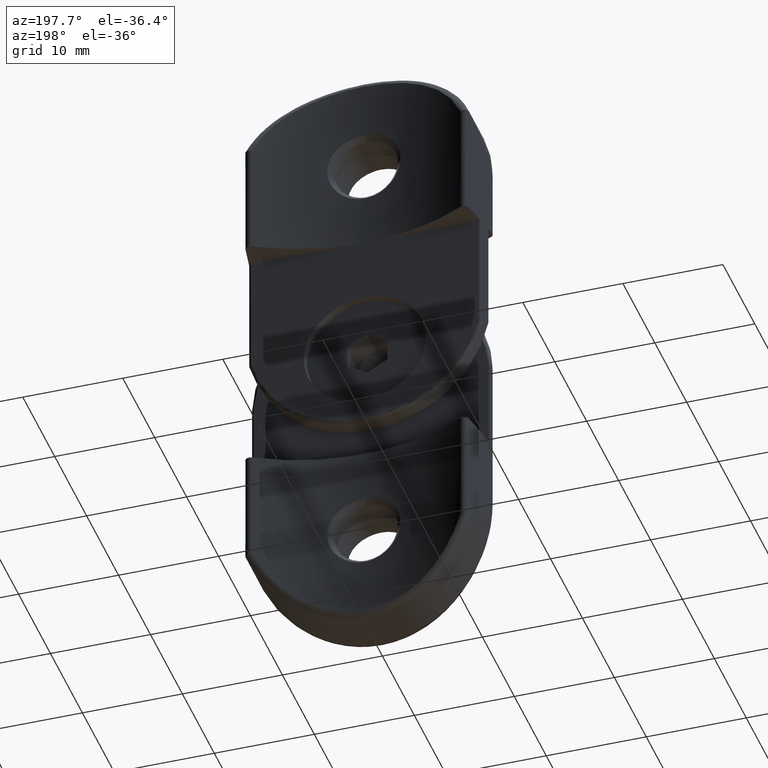
[diagram: clean part render]
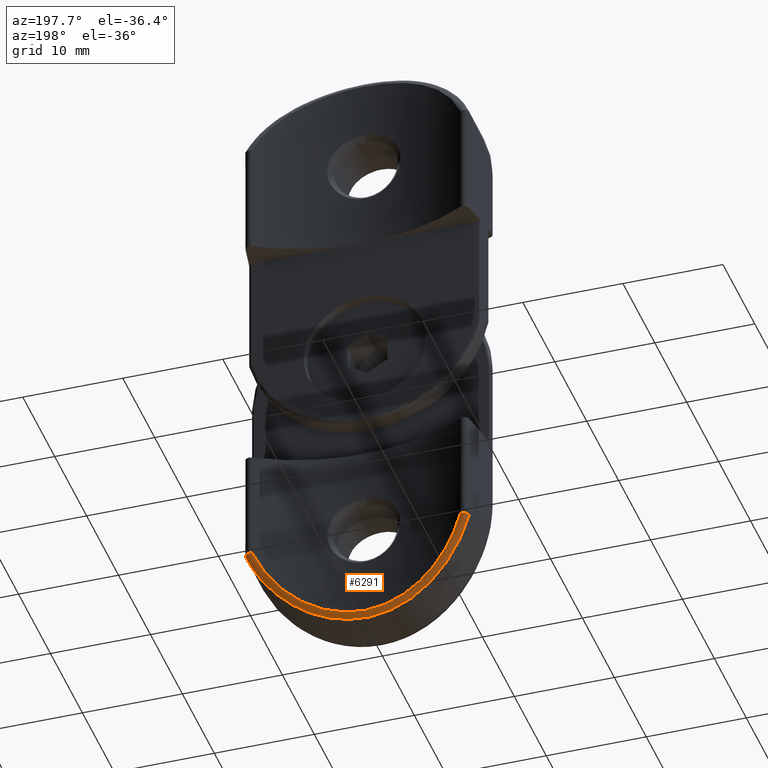
[diagram: same view with one face highlighted and labeled with its STEP entity id]
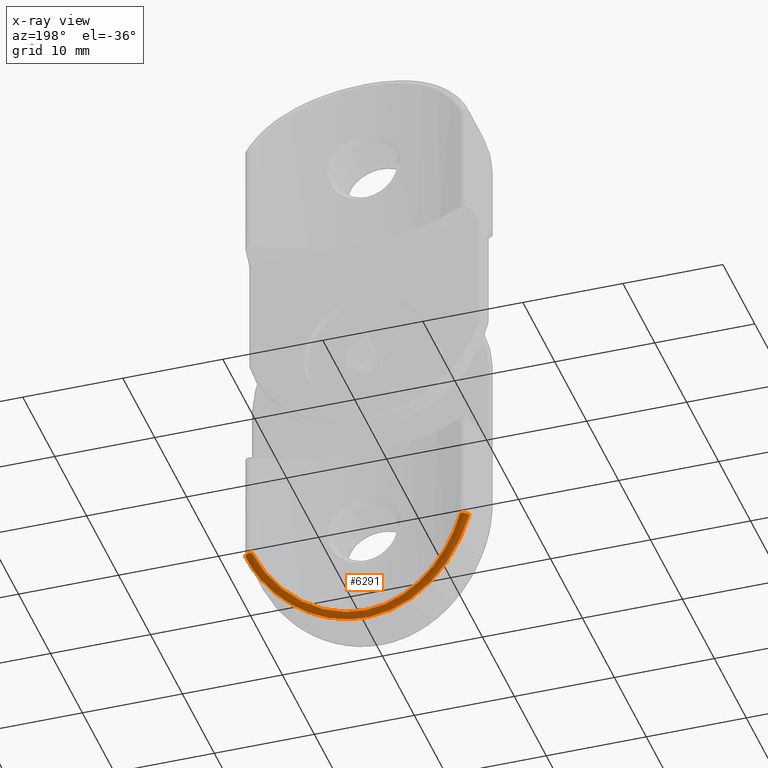
[diagram: x-ray of the same camera — body ghosted, the highlighted face saturated]
A machine part, auxiliary view. The second image highlights one B-rep face of the part: STEP entity #6291.
The next image is the same camera in x-ray: the body ghosted, the highlighted face saturated — about 0% of this face is hidden behind the body in this view.
In plain terms, the highlighted face is a freeform B-spline surface patch.
Its self-contained STEP definition (entity closure, byte-faithful):
#95 = CARTESIAN_POINT ( 'NONE',  ( 10.74484991935659650, 8.331054996667006662, 11.33303897063081322 ) ) ;
#243 = CARTESIAN_POINT ( 'NONE',  ( -4.755595968861624279, 5.477430210660490850, 18.03355094193765495 ) ) ;
#703 = CARTESIAN_POINT ( 'NONE',  ( -1.158231492261949214, 5.524015222038428874, 18.45380529205698394 ) ) ;
#801 = CARTESIAN_POINT ( 'NONE',  ( -10.74484991935680434, 8.331054996666967583, 11.33303897063075460 ) ) ;
#812 = B_SPLINE_CURVE_WITH_KNOTS ( 'NONE', 3,
 ( #14223, #14148, #801, #17529, #7598, #7520 ),
 .UNSPECIFIED., .F., .F.,
 ( 4, 2, 4 ),
 ( -6.935499529924951731E-06, 0.0004760568543269857664, 0.0009590492081838964582 ),
 .UNSPECIFIED. ) ;
#894 = EDGE_CURVE ( 'NONE', #5878, #3886, #3142, .T. ) ;
#949 = CARTESIAN_POINT ( 'NONE',  ( 11.17627156864104698, 7.874099999710949760, 11.36522091286671809 ) ) ;
#1026 = CARTESIAN_POINT ( 'NONE',  ( 11.03562268163974203, 8.196188693957703109, 11.37304940477187110 ) ) ;
#1210 = CARTESIAN_POINT ( 'NONE',  ( -6.659757557538868333, 5.958288378212696301, 16.98694671580224380 ) ) ;
#1339 = CARTESIAN_POINT ( 'NONE',  ( 4.746169475350381362, 5.475436305577784601, 18.03773863507712960 ) ) ;
#1381 = CARTESIAN_POINT ( 'NONE',  ( 10.08848387554309411, 8.043215775840129922, 13.50783142905046574 ) ) ;
#1488 = CARTESIAN_POINT ( 'NONE',  ( 10.26083398719379502, 7.355187974072022072, 13.22927107006066727 ) ) ;
#1502 = CARTESIAN_POINT ( 'NONE',  ( -10.96590931136573488, 8.540042620850968547, 11.91552508770350016 ) ) ;
#1526 = CARTESIAN_POINT ( 'NONE',  ( 2.320654073993934752, 5.597628169268222820, 18.31459258552029112 ) ) ;
#1556 = CARTESIAN_POINT ( 'NONE',  ( 9.769620725314709375, 7.122863358458314309, 13.97446188118807875 ) ) ;
#1571 = CARTESIAN_POINT ( 'NONE',  ( -1.219294715640819371, 5.526538234080687673, 18.95323349633770249 ) ) ;
#1592 = CARTESIAN_POINT ( 'NONE',  ( -0.5836480082327216712, 5.499876297342142450, 18.50023892632016498 ) ) ;
#1650 = CARTESIAN_POINT ( 'NONE',  ( -3.020540805230576442, 5.707974675786219088, 18.62906779515225253 ) ) ;
#1669 = CARTESIAN_POINT ( 'NONE',  ( 11.18377729768530493, 7.831532895039281073, 11.35007187938070849 ) ) ;
#2617 = CARTESIAN_POINT ( 'NONE',  ( -9.985735442085383440, 7.996496873008563711, 12.30000538271786326 ) ) ;
#2692 = CARTESIAN_POINT ( 'NONE',  ( 9.425487417415547853, 7.709741255055901910, 13.26491626726333095 ) ) ;
#2833 = CARTESIAN_POINT ( 'NONE',  ( 8.951185520482383140, 7.481480485479008458, 13.95563217174335513 ) ) ;
#2903 = CARTESIAN_POINT ( 'NONE',  ( 5.447075807774298006, 6.205254224383287109, 17.07418729530903079 ) ) ;
#2930 = CARTESIAN_POINT ( 'NONE',  ( -7.401730111955759916, 6.186041074216772628, 16.46468663335689087 ) ) ;
#2955 = CARTESIAN_POINT ( 'NONE',  ( 8.613238872696699744, 7.317166950831500039, 15.37888527879232470 ) ) ;
#2979 = CARTESIAN_POINT ( 'NONE',  ( 11.17225821709481259, 7.896860847370852809, 11.36687246722910238 ) ) ;
#2986 = CARTESIAN_POINT ( 'NONE',  ( 10.70500550724504585, 7.575519079079930052, 12.45499640678503717 ) ) ;
#3105 = CARTESIAN_POINT ( 'NONE',  ( 10.96749782070269674, 8.541029268004281860, 11.91116495271640296 ) ) ;
#3142 = B_SPLINE_CURVE_WITH_KNOTS ( 'NONE', 3,
 ( #4717, #18467, #2986, #1488, #20176, #1556, #5013, #8382, #21640, #16690, #11499, #16849, #21871, #1339, #6734, #18547, #14925, #18397, #16615, #11563, #4868, #6585, #243, #13497, #16916, #13795, #7098, #17067, #15233, #13656, #18701, #6813, #5319, #3446 ),
 .UNSPECIFIED., .F., .F.,
 ( 4, 2, 2, 2, 2, 2, 2, 2, 2, 2, 2, 2, 2, 2, 2, 2, 4 ),
 ( 0.000000000000000000, 0.001838482990743878654, 0.002757724486115818198, 0.003676965981487757308, 0.005515448972231635529, 0.007353931962975512882, 0.009192414953719389367, 0.01103089794446326759, 0.01470786392595102403, 0.01654634691669490398, 0.01838482990743878220, 0.02022331289818266042, 0.02206179588892654211, 0.02573876187041430549, 0.02665800336578624460, 0.02757724486115818371, 0.02941572785190205847 ),
 .UNSPECIFIED. ) ;
#3177 = CARTESIAN_POINT ( 'NONE',  ( 7.289422869660338478, 6.782312485995468876, 16.55286138411810271 ) ) ;
#3235 = CARTESIAN_POINT ( 'NONE',  ( -10.19161155434034960, 7.319687046740383174, 13.36338664161585399 ) ) ;
#3256 = CARTESIAN_POINT ( 'NONE',  ( 1.261118242626000141, 5.000254690913484623, 18.99949851309055759 ) ) ;
#3269 = CARTESIAN_POINT ( 'NONE',  ( 10.70501289380958099, 8.384970630574066774, 12.46036273556157248 ) ) ;
#3318 = CARTESIAN_POINT ( 'NONE',  ( -5.512693456431568606, 6.225817692438941009, 17.66368263976617925 ) ) ;
#3446 = CARTESIAN_POINT ( 'NONE',  ( -11.18377729768533335, 7.831532895039308606, 11.35007187938062678 ) ) ;
#3586 = CARTESIAN_POINT ( 'NONE',  ( -11.18377729768533335, 7.831532895039308606, 11.35007187938062678 ) ) ;
#3886 = VERTEX_POINT ( 'NONE', #3586 ) ;
#4074 = CARTESIAN_POINT ( 'NONE',  ( -7.304972503696314234, 6.775174054749857788, 15.81122960220486462 ) ) ;
#4425 = CARTESIAN_POINT ( 'NONE',  ( 7.271050950572120364, 6.781292905817238648, 15.78469357691117025 ) ) ;
#4503 = CARTESIAN_POINT ( 'NONE',  ( -11.17627156863664517, 7.874099999736120736, 11.36522091281270264 ) ) ;
#4557 = FACE_OUTER_BOUND ( 'NONE', #10880, .T. ) ;
#4688 = CARTESIAN_POINT ( 'NONE',  ( 1.180724376160849243, 5.500248822932431558, 18.49951940928929872 ) ) ;
#4717 = CARTESIAN_POINT ( 'NONE',  ( 11.18377729768530493, 7.831532895039281073, 11.35007187938070849 ) ) ;
#4762 = CARTESIAN_POINT ( 'NONE',  ( 10.24830492156062611, 8.130108272024440197, 13.25286601534300779 ) ) ;
#4838 = CARTESIAN_POINT ( 'NONE',  ( 10.09330541094436384, 8.054364290099647050, 12.08359064455126308 ) ) ;
#4868 = CARTESIAN_POINT ( 'NONE',  ( -3.046450002173269667, 5.189996768334407484, 18.62262789421343356 ) ) ;
#4918 = CARTESIAN_POINT ( 'NONE',  ( 9.858459219597602186, 7.163820806052395795, 13.84842962319449455 ) ) ;
#4959 = CARTESIAN_POINT ( 'NONE',  ( -10.32813915516073244, 8.184516414372449589, 11.56465569356241652 ) ) ;
#4985 = CARTESIAN_POINT ( 'NONE',  ( 4.166873522734483082, 5.904271358294434613, 18.27033971852641159 ) ) ;
#5013 = CARTESIAN_POINT ( 'NONE',  ( 9.592735577070230946, 7.042540807907029965, 14.21577920212091151 ) ) ;
#5026 = CARTESIAN_POINT ( 'NONE',  ( -5.620860614114084441, 5.677515993506895953, 17.60645689632467281 ) ) ;
#5314 = CARTESIAN_POINT ( 'NONE',  ( -0.6233877823780459293, 4.999873380068793338, 19.00024931489626923 ) ) ;
#5319 = CARTESIAN_POINT ( 'NONE',  ( -10.96389911758980240, 7.711840319096117113, 11.91536566463158309 ) ) ;
#5414 = ORIENTED_EDGE ( 'NONE', *, *, #11452, .T. ) ;
#5786 = CARTESIAN_POINT ( 'NONE',  ( -5.451807340514525535, 6.206569743331248112, 17.07137015347429809 ) ) ;
#5878 = VERTEX_POINT ( 'NONE', #1669 ) ;
#6135 = CARTESIAN_POINT ( 'NONE',  ( 8.438773648873903355, 7.248317360404466392, 14.61265464379833112 ) ) ;
#6190 = CARTESIAN_POINT ( 'NONE',  ( 11.14416070920599822, 8.056209733037265508, 11.37843501319381012 ) ) ;
#6212 = CARTESIAN_POINT ( 'NONE',  ( 4.445475605979141598, 5.964933424282343744, 17.57688608021730658 ) ) ;
#6280 = CARTESIAN_POINT ( 'NONE',  ( 1.159080504591266880, 5.499828510092866551, 18.50033122594187418 ) ) ;
#6291 = ADVANCED_FACE ( 'NONE', ( #4557 ), #20961, .T. ) ;
#6368 = CARTESIAN_POINT ( 'NONE',  ( -6.235210800775324635, 6.436208000552871233, 16.57082393581233148 ) ) ;
#6395 = CARTESIAN_POINT ( 'NONE',  ( 9.684555842305531570, 7.840704826969453478, 12.83657170087952970 ) ) ;
#6447 = CARTESIAN_POINT ( 'NONE',  ( -9.122951532327952862, 6.835352835764497037, 14.81884667855181092 ) ) ;
#6476 = CARTESIAN_POINT ( 'NONE',  ( 9.682682264903030855, 7.083083979377740036, 14.09479376254953564 ) ) ;
#6551 = CARTESIAN_POINT ( 'NONE',  ( 8.549284938518370680, 7.296561753131010519, 14.48355778311051800 ) ) ;
#6585 = CARTESIAN_POINT ( 'NONE',  ( -4.200461164754970333, 5.369279863270690178, 18.25710721217822652 ) ) ;
#6622 = CARTESIAN_POINT ( 'NONE',  ( 9.065429862238612913, 7.535086652874184665, 13.79917735568237624 ) ) ;
#6673 = CARTESIAN_POINT ( 'NONE',  ( -9.541915887231947835, 7.766238035997879763, 13.09824553160516558 ) ) ;
#6706 = CARTESIAN_POINT ( 'NONE',  ( 6.418052340954186974, 5.883935475397198189, 17.15757657893756161 ) ) ;
#6734 = CARTESIAN_POINT ( 'NONE',  ( 4.185034573843307015, 5.366342349813775670, 18.26317496795124029 ) ) ;
#6752 = CARTESIAN_POINT ( 'NONE',  ( -4.810816157763207812, 5.488724538248325402, 18.00999798563892540 ) ) ;
#6813 = CARTESIAN_POINT ( 'NONE',  ( -10.70522328581805382, 7.575638260506627475, 12.45449191129079658 ) ) ;
#6827 = VERTEX_POINT ( 'NONE', #11521 ) ;
#7077 = ORIENTED_EDGE ( 'NONE', *, *, #13717, .F. ) ;
#7098 = CARTESIAN_POINT ( 'NONE',  ( -8.673000440158944002, 6.639827662492354676, 15.37802289874392869 ) ) ;
#7132 = EDGE_CURVE ( 'NONE', #6827, #15725, #15614, .T. ) ;
#7200 = CARTESIAN_POINT ( 'NONE',  ( 11.18010637547634545, 7.852351729424181137, 11.35950960312285041 ) ) ;
#7414 = CARTESIAN_POINT ( 'NONE',  ( -9.572722570740861414, 7.783685137722961223, 13.02644183317279314 ) ) ;
#7453 = CARTESIAN_POINT ( 'NONE',  ( 11.17225821709481259, 7.896860847370852809, 11.36687246722910238 ) ) ;
#7520 = CARTESIAN_POINT ( 'NONE',  ( -11.17225821709484279, 7.896860847370867909, 11.36687246722901712 ) ) ;
#7598 = CARTESIAN_POINT ( 'NONE',  ( -11.14416070920602841, 8.056209733037285048, 11.37843501319372841 ) ) ;
#7791 = CARTESIAN_POINT ( 'NONE',  ( -11.18010637547569885, 7.852351729428037608, 11.35950960307989277 ) ) ;
#7874 = CARTESIAN_POINT ( 'NONE',  ( -0.6096157128664215774, 5.499865288643311700, 19.00023830134796299 ) ) ;
#7915 = CARTESIAN_POINT ( 'NONE',  ( 2.284724583665215913, 5.594511607988642332, 18.32043139297822520 ) ) ;
#8091 = CARTESIAN_POINT ( 'NONE',  ( -5.996244108314908949, 6.364101583176186239, 16.72948503890183503 ) ) ;
#8117 = CARTESIAN_POINT ( 'NONE',  ( 9.749651380461799022, 7.865163048418098768, 14.00503440725423765 ) ) ;
#8166 = CARTESIAN_POINT ( 'NONE',  ( -9.006490576560464589, 7.497394387087830125, 14.95395456715727356 ) ) ;
#8195 = CARTESIAN_POINT ( 'NONE',  ( 9.230001373863084169, 7.613963183539415702, 13.56307838885179784 ) ) ;
#8266 = CARTESIAN_POINT ( 'NONE',  ( 11.24535007203716042, 7.865172817835686558, 11.18832923220391073 ) ) ;
#8317 = CARTESIAN_POINT ( 'NONE',  ( -8.541380889771108542, 7.293063599498391447, 14.49306140047480440 ) ) ;
#8382 = CARTESIAN_POINT ( 'NONE',  ( 9.040203300585847757, 6.800655859494406208, 14.91371629927906994 ) ) ;
#8396 = CARTESIAN_POINT ( 'NONE',  ( -2.471316880196670063, 5.121561601731515090, 18.75917825803709604 ) ) ;
#8463 = CARTESIAN_POINT ( 'NONE',  ( -4.166213862820153935, 5.904329588605822465, 18.27021225228330437 ) ) ;
#8676 = CARTESIAN_POINT ( 'NONE',  ( 10.43377474748756129, 8.245289367787668411, 11.26505700592724502 ) ) ;
#9120 = CARTESIAN_POINT ( 'NONE',  ( -8.953008070730110290, 7.482327970191361644, 13.95318625667959722 ) ) ;
#9202 = CARTESIAN_POINT ( 'NONE',  ( -2.857210377828351078, 5.686308515180253487, 18.13698937359372820 ) ) ;
#9534 = B_SPLINE_CURVE_WITH_KNOTS ( 'NONE', 3,
 ( #7453, #949, #7200, #13972 ),
 .UNSPECIFIED., .F., .F.,
 ( 4, 4 ),
 ( 0.000000000000000000, 6.843018577746274298E-05 ),
 .UNSPECIFIED. ) ;
#9603 = CARTESIAN_POINT ( 'NONE',  ( -11.18377729768533335, 7.831532895039308606, 11.35007187938062678 ) ) ;
#9662 = CARTESIAN_POINT ( 'NONE',  ( 9.115304018482488502, 7.558919233585017494, 13.72864743388797848 ) ) ;
#9689 = CARTESIAN_POINT ( 'NONE',  ( -8.723546235699094709, 6.670129488114659111, 15.26161051106161182 ) ) ;
#9753 = CARTESIAN_POINT ( 'NONE',  ( -5.885574685594864519, 5.744254108411647408, 17.46189596522531318 ) ) ;
#9783 = CARTESIAN_POINT ( 'NONE',  ( 9.131393756674883733, 6.838933493021998267, 14.80892986044034210 ) ) ;
#9860 = CARTESIAN_POINT ( 'NONE',  ( 6.008913827888850534, 6.363568298198836182, 16.73434422164200441 ) ) ;
#9935 = CARTESIAN_POINT ( 'NONE',  ( 6.305549136206189509, 6.450767151816693357, 17.22765843979964373 ) ) ;
#9975 = CARTESIAN_POINT ( 'NONE',  ( -8.167436913291069800, 7.131647242313801094, 14.91737673978972900 ) ) ;
#10001 = CARTESIAN_POINT ( 'NONE',  ( 5.792260939301486111, 6.297213221207155875, 17.52747238282713838 ) ) ;
#10047 = CARTESIAN_POINT ( 'NONE',  ( -4.504135865130373340, 5.977463603828348404, 17.55124806952734673 ) ) ;
#10129 = CARTESIAN_POINT ( 'NONE',  ( -3.978775225341002475, 5.869345009983463868, 17.77075174944648239 ) ) ;
#10583 = VERTEX_POINT ( 'NONE', #12667 ) ;
#10868 = CARTESIAN_POINT ( 'NONE',  ( -2.292579752338175680, 5.616643777963228779, 18.27334972465246210 ) ) ;
#10880 = EDGE_LOOP ( 'NONE', ( #15144, #7077, #16510, #15765, #5414, #18608 ) ) ;
#11011 = CARTESIAN_POINT ( 'NONE',  ( -10.43377474748759326, 8.245289367787689727, 11.26505700592716153 ) ) ;
#11318 = CARTESIAN_POINT ( 'NONE',  ( 11.17225821709481259, 7.896860847370852809, 11.36687246722910238 ) ) ;
#11337 = CARTESIAN_POINT ( 'NONE',  ( 8.068826196476576840, 7.090891962133621718, 15.02178323313529873 ) ) ;
#11360 = B_SPLINE_CURVE_WITH_KNOTS ( 'NONE', 3,
 ( #11011, #19532, #2617, #7414, #14472, #19240, #9120, #14194, #4074, #15900, #5786, #17581, #19307, #9202, #10868, #703, #19662, #6280, #7915, #16181, #6212, #2903, #16455, #19734, #4425, #11337, #6135, #2833, #9662, #2692, #13040, #17935, #21560, #18091 ),
 .UNSPECIFIED., .F., .F.,
 ( 4, 2, 2, 2, 2, 2, 2, 2, 2, 2, 2, 2, 2, 2, 2, 2, 4 ),
 ( 0.000000000000000000, 0.001724428170446973881, 0.002586642255670459304, 0.003448856340893944727, 0.006897712681787891188, 0.008622140852234862901, 0.01034656902268183375, 0.01207099719312880459, 0.01379542536357577544, 0.01724428170446971886, 0.01896870987491668797, 0.02069313804536366055, 0.02241756621581062967, 0.02414199438625760225, 0.02500420847148108333, 0.02586642255670456789, 0.02759085072715153353 ),
 .UNSPECIFIED. ) ;
#11362 = CARTESIAN_POINT ( 'NONE',  ( -6.929884029596687256, 6.658712939429462629, 16.07032469062998814 ) ) ;
#11452 = EDGE_CURVE ( 'NONE', #10583, #15412, #812, .T. ) ;
#11499 = CARTESIAN_POINT ( 'NONE',  ( 7.319436478771421228, 6.159010530028987240, 16.52807845147446031 ) ) ;
#11521 = CARTESIAN_POINT ( 'NONE',  ( 10.43377474748756129, 8.245289367787668411, 11.26505700592724502 ) ) ;
#11537 = CARTESIAN_POINT ( 'NONE',  ( 2.442994264854635222, 5.609326706519097705, 18.80931409706487045 ) ) ;
#11563 = CARTESIAN_POINT ( 'NONE',  ( -2.443978124819075948, 5.118927805181715307, 18.76442626046857143 ) ) ;
#11678 = CARTESIAN_POINT ( 'NONE',  ( 10.52848059739884690, 8.299155010973112923, 11.01381551419541438 ) ) ;
#11730 = CARTESIAN_POINT ( 'NONE',  ( -1.244228237907813339, 5.024754201310703827, 18.95146754665008260 ) ) ;
#11800 = CARTESIAN_POINT ( 'NONE',  ( -5.510380600492872816, 6.227105396070873766, 17.02598363339454579 ) ) ;
#12056 = EDGE_CURVE ( 'NONE', #3886, #15412, #20863, .T. ) ;
#12667 = CARTESIAN_POINT ( 'NONE',  ( -10.43377474748759326, 8.245289367787689727, 11.26505700592716153 ) ) ;
#13040 = CARTESIAN_POINT ( 'NONE',  ( 9.571902829208481123, 7.783268551113319944, 13.02782184256495590 ) ) ;
#13069 = CARTESIAN_POINT ( 'NONE',  ( -6.539833349339022384, 6.529805667333599573, 17.06673158078928054 ) ) ;
#13242 = CARTESIAN_POINT ( 'NONE',  ( 10.32960651670585506, 8.185364481182208607, 11.56037095510700041 ) ) ;
#13270 = CARTESIAN_POINT ( 'NONE',  ( -1.164911076824088676, 5.524183827884805886, 18.45348973221680211 ) ) ;
#13396 = CARTESIAN_POINT ( 'NONE',  ( 4.815957997215646103, 5.489750378447187273, 18.00787123565175207 ) ) ;
#13437 = CARTESIAN_POINT ( 'NONE',  ( -2.885527863062930631, 5.689988849161083273, 18.12976320585326917 ) ) ;
#13497 = CARTESIAN_POINT ( 'NONE',  ( -5.825088699072900944, 5.723707323068047970, 17.50824823913668737 ) ) ;
#13656 = CARTESIAN_POINT ( 'NONE',  ( -10.10449424078495362, 7.279601040726352501, 13.47977673678957267 ) ) ;
#13717 = EDGE_CURVE ( 'NONE', #15725, #5878, #9534, .T. ) ;
#13795 = CARTESIAN_POINT ( 'NONE',  ( -7.817311857435180755, 6.310184481447945970, 16.18274181434007986 ) ) ;
#13959 = CARTESIAN_POINT ( 'NONE',  ( -11.17225821709484279, 7.896860847370867909, 11.36687246722901712 ) ) ;
#13972 = CARTESIAN_POINT ( 'NONE',  ( 11.18377729768530493, 7.831532895039281073, 11.35007187938070849 ) ) ;
#14148 = CARTESIAN_POINT ( 'NONE',  ( -10.57069281799592098, 8.322698996961165108, 11.29944459503896503 ) ) ;
#14194 = CARTESIAN_POINT ( 'NONE',  ( -8.098328948290776097, 7.093332348335747994, 15.04961150358500710 ) ) ;
#14223 = CARTESIAN_POINT ( 'NONE',  ( -10.43377474748759326, 8.245289367787689727, 11.26505700592716153 ) ) ;
#14472 = CARTESIAN_POINT ( 'NONE',  ( -9.426554561792650944, 7.710274048411636549, 13.26321243049517129 ) ) ;
#14810 = CARTESIAN_POINT ( 'NONE',  ( 2.478664154296836841, 5.099930720684731078, 18.80653139307785437 ) ) ;
#14864 = CARTESIAN_POINT ( 'NONE',  ( -11.03136710896395378, 7.747830175918207551, 11.76312047451360421 ) ) ;
#14893 = CARTESIAN_POINT ( 'NONE',  ( 7.871767001844435896, 6.348637306930670299, 16.07692479012079900 ) ) ;
#14925 = CARTESIAN_POINT ( 'NONE',  ( 1.234675230839267224, 4.999827898161225193, 19.00033886820438056 ) ) ;
#14941 = CARTESIAN_POINT ( 'NONE',  ( -11.24597593718822530, 7.865516013142932472, 11.18664844716909812 ) ) ;
#14970 = CARTESIAN_POINT ( 'NONE',  ( 10.34396366407801615, 7.395910129727105264, 13.09033568786783341 ) ) ;
#15013 = CARTESIAN_POINT ( 'NONE',  ( -11.18942973246806183, 8.677360687019582741, 11.33854017288881089 ) ) ;
#15041 = CARTESIAN_POINT ( 'NONE',  ( 7.369956970384334838, 6.817562714124739465, 15.69871959048741594 ) ) ;
#15091 = CARTESIAN_POINT ( 'NONE',  ( -10.77673511609843793, 7.612606808168425943, 12.31259031572260554 ) ) ;
#15117 = CARTESIAN_POINT ( 'NONE',  ( 1.233298134599656759, 5.500270975476150070, 18.99952065050184657 ) ) ;
#15144 = ORIENTED_EDGE ( 'NONE', *, *, #894, .F. ) ;
#15166 = CARTESIAN_POINT ( 'NONE',  ( -5.774048583032884707, 6.297933893795750748, 17.52444632316837669 ) ) ;
#15233 = CARTESIAN_POINT ( 'NONE',  ( -9.771371741440752601, 7.123669121291626105, 13.97198714221912397 ) ) ;
#15412 = VERTEX_POINT ( 'NONE', #13959 ) ;
#15614 = B_SPLINE_CURVE_WITH_KNOTS ( 'NONE', 3,
 ( #8676, #20465, #95, #1026, #6190, #11318 ),
 .UNSPECIFIED., .F., .F.,
 ( 4, 2, 4 ),
 ( -6.935499529924299515E-06, 0.0004760568543268173356, 0.0009590492081835589461 ),
 .UNSPECIFIED. ) ;
#15635 = EDGE_CURVE ( 'NONE', #10583, #6827, #11360, .T. ) ;
#15725 = VERTEX_POINT ( 'NONE', #2979 ) ;
#15765 = ORIENTED_EDGE ( 'NONE', *, *, #15635, .F. ) ;
#15900 = CARTESIAN_POINT ( 'NONE',  ( -5.932151755314018615, 6.341220478403110761, 16.78286102317632000 ) ) ;
#16181 = CARTESIAN_POINT ( 'NONE',  ( 3.921464490657100566, 5.858514498226187861, 17.79263665203758649 ) ) ;
#16455 = CARTESIAN_POINT ( 'NONE',  ( 5.925974745542678335, 6.339417641241121615, 16.78678257729787759 ) ) ;
#16484 = CARTESIAN_POINT ( 'NONE',  ( -10.52906656484826975, 8.299490298554385248, 11.01220476187038599 ) ) ;
#16510 = ORIENTED_EDGE ( 'NONE', *, *, #7132, .F. ) ;
#16512 = CARTESIAN_POINT ( 'NONE',  ( 10.18871505651363307, 7.320066263501714410, 13.34667566411654960 ) ) ;
#16560 = CARTESIAN_POINT ( 'NONE',  ( -9.755982661353124641, 7.864637747893016062, 14.01659717498083069 ) ) ;
#16585 = CARTESIAN_POINT ( 'NONE',  ( 4.724256202252163916, 6.024824561211557850, 18.04703210017786574 ) ) ;
#16615 = CARTESIAN_POINT ( 'NONE',  ( -1.234097744521409856, 5.024446981143379176, 18.95206078756144663 ) ) ;
#16658 = CARTESIAN_POINT ( 'NONE',  ( 9.015008341361836486, 7.501390331878603490, 14.94425271830015234 ) ) ;
#16690 = CARTESIAN_POINT ( 'NONE',  ( 7.781705986414063858, 6.316882097762532844, 16.15382004665555726 ) ) ;
#16707 = CARTESIAN_POINT ( 'NONE',  ( -10.70108168397609383, 8.382660502172974759, 12.46831205982910973 ) ) ;
#16734 = CARTESIAN_POINT ( 'NONE',  ( 10.78054441787609541, 7.614608730434307304, 12.30461632476206191 ) ) ;
#16786 = CARTESIAN_POINT ( 'NONE',  ( -10.08973894476872601, 8.052408495065103367, 12.09123238584418836 ) ) ;
#16820 = CARTESIAN_POINT ( 'NONE',  ( 3.979314184675157406, 5.869278896950190116, 17.77090691820229651 ) ) ;
#16849 = CARTESIAN_POINT ( 'NONE',  ( 6.334722955813235856, 5.860600448624688319, 17.20929549074345744 ) ) ;
#16863 = CARTESIAN_POINT ( 'NONE',  ( -5.262541542674248340, 6.161905026094049553, 17.16452119233279205 ) ) ;
#16916 = CARTESIAN_POINT ( 'NONE',  ( -6.341190712901016546, 5.862413572443834653, 17.20527208451223089 ) ) ;
#17067 = CARTESIAN_POINT ( 'NONE',  ( -9.594737407405050433, 7.043436247030210318, 14.21313224981851420 ) ) ;
#17529 = CARTESIAN_POINT ( 'NONE',  ( -11.03562268163970650, 8.196188693957733307, 11.37304940477178228 ) ) ;
#17581 = CARTESIAN_POINT ( 'NONE',  ( -4.454739699524540519, 5.966978484250921255, 17.57267271245407869 ) ) ;
#17935 = CARTESIAN_POINT ( 'NONE',  ( 9.985500038455739968, 7.996364019088935571, 12.30054262878962135 ) ) ;
#17949 = CARTESIAN_POINT ( 'NONE',  ( -11.17225821709484279, 7.896860847370867909, 11.36687246722901712 ) ) ;
#18091 = CARTESIAN_POINT ( 'NONE',  ( 10.43377474748756129, 8.245289367787668411, 11.26505700592724502 ) ) ;
#18182 = CARTESIAN_POINT ( 'NONE',  ( -6.287009483557218559, 6.449651785003417181, 17.22655909963744136 ) ) ;
#18204 = CARTESIAN_POINT ( 'NONE',  ( 7.409382659629348389, 6.188552336851432578, 16.45879518815120335 ) ) ;
#18281 = CARTESIAN_POINT ( 'NONE',  ( 6.937048741781909555, 6.661166338652360075, 16.06467872181806555 ) ) ;
#18360 = CARTESIAN_POINT ( 'NONE',  ( 9.539204035184223329, 7.766608515748469443, 13.08223084482128584 ) ) ;
#18397 = CARTESIAN_POINT ( 'NONE',  ( -0.6222713125638686948, 5.000086394316930694, 18.99982988974869258 ) ) ;
#18412 = CARTESIAN_POINT ( 'NONE',  ( -9.231315156356693308, 7.611595445368394941, 13.58017937157663191 ) ) ;
#18435 = CARTESIAN_POINT ( 'NONE',  ( 4.250260105474310990, 5.377988304769867334, 18.23920721924796950 ) ) ;
#18467 = CARTESIAN_POINT ( 'NONE',  ( 10.96385577498245922, 7.711816725175529186, 11.91547709590935433 ) ) ;
#18513 = CARTESIAN_POINT ( 'NONE',  ( 9.570326184906479128, 7.773762253073711825, 14.24828523596693763 ) ) ;
#18547 = CARTESIAN_POINT ( 'NONE',  ( 2.435847632553164832, 5.096247986064661006, 18.81360001366111234 ) ) ;
#18566 = CARTESIAN_POINT ( 'NONE',  ( -4.249684448997498087, 5.378055976750681921, 18.23904530336111307 ) ) ;
#18608 = ORIENTED_EDGE ( 'NONE', *, *, #12056, .F. ) ;
#18701 = CARTESIAN_POINT ( 'NONE',  ( -10.26166031960535463, 7.355592317325145402, 13.22789285291793959 ) ) ;
#19240 = CARTESIAN_POINT ( 'NONE',  ( -9.116996104554750957, 7.559728198052777515, 13.72622519693681475 ) ) ;
#19307 = CARTESIAN_POINT ( 'NONE',  ( -3.936483702075717961, 5.861502524758456900, 17.78658147810845591 ) ) ;
#19532 = CARTESIAN_POINT ( 'NONE',  ( -10.22727492652609804, 8.128540172406221842, 11.79433524868720795 ) ) ;
#19662 = CARTESIAN_POINT ( 'NONE',  ( -0.5842388216480753904, 5.500086092069195409, 18.49983371658901987 ) ) ;
#19734 = CARTESIAN_POINT ( 'NONE',  ( 6.841597066871939248, 6.628551615611238290, 16.13963395214980778 ) ) ;
#19823 = CARTESIAN_POINT ( 'NONE',  ( -9.859862456235122252, 7.161397224311413012, 13.86627412706707396 ) ) ;
#19889 = CARTESIAN_POINT ( 'NONE',  ( -6.404519958267096413, 5.884481337327089001, 17.15250612760569382 ) ) ;
#19920 = CARTESIAN_POINT ( 'NONE',  ( 11.03293440246878809, 7.748698256153319086, 11.75864938438201079 ) ) ;
#19967 = CARTESIAN_POINT ( 'NONE',  ( -7.361682844555002880, 6.814500733498816132, 15.70601432428369115 ) ) ;
#19998 = CARTESIAN_POINT ( 'NONE',  ( 5.899625817151336271, 5.742660628827098712, 17.46714363086874044 ) ) ;
#20039 = CARTESIAN_POINT ( 'NONE',  ( -10.09472862262470372, 8.044520276383453350, 13.51825389291779800 ) ) ;
#20067 = CARTESIAN_POINT ( 'NONE',  ( 8.732522228949623155, 6.673718744440493289, 15.25217152619461380 ) ) ;
#20137 = CARTESIAN_POINT ( 'NONE',  ( 4.508949922154984691, 5.978465807107591345, 17.54920993402552654 ) ) ;
#20176 = CARTESIAN_POINT ( 'NONE',  ( 10.10340734428122822, 7.279078517309298668, 13.48149424779257899 ) ) ;
#20191 = CARTESIAN_POINT ( 'NONE',  ( -2.420244694773359129, 5.629666108041371686, 18.76934095425621152 ) ) ;
#20266 = CARTESIAN_POINT ( 'NONE',  ( -4.719150327861484584, 6.023709429951427552, 18.04910111022806518 ) ) ;
#20465 = CARTESIAN_POINT ( 'NONE',  ( 10.57069281799127403, 8.322698996958541429, 11.29944459506295473 ) ) ;
#20863 = B_SPLINE_CURVE_WITH_KNOTS ( 'NONE', 3,
 ( #9603, #7791, #4503, #17949 ),
 .UNSPECIFIED., .F., .F.,
 ( 4, 4 ),
 ( 0.000000000000000000, 6.843018577744910914E-05 ),
 .UNSPECIFIED. ) ;
#20961 =( BOUNDED_SURFACE ( )  B_SPLINE_SURFACE ( 3, 2, ( 
 ( #14941, #15013, #16484 ),
 ( #14864, #1502, #4959 ),
 ( #15091, #16707, #16786 ),
 ( #3235, #20039, #6673 ),
 ( #19823, #16560, #18412 ),
 ( #6447, #8166, #8317 ),
 ( #9689, #21586, #9975 ),
 ( #21512, #21808, #19967 ),
 ( #2930, #21658, #11362 ),
 ( #1210, #13069, #6368 ),
 ( #19889, #18182, #8091 ),
 ( #9753, #15166, #11800 ),
 ( #5026, #3318, #16863 ),
 ( #6752, #20266, #10047 ),
 ( #18566, #8463, #10129 ),
 ( #21961, #1650, #13437 ),
 ( #8396, #20191, #21887 ),
 ( #11730, #1571, #13270 ),
 ( #5314, #7874, #1592 ),
 ( #3256, #15117, #4688 ),
 ( #14810, #11537, #1526 ),
 ( #18435, #4985, #16820 ),
 ( #13396, #16585, #20137 ),
 ( #19998, #10001, #21608 ),
 ( #6706, #9935, #9860 ),
 ( #18204, #3177, #18281 ),
 ( #14893, #21684, #15041 ),
 ( #20067, #2955, #21837 ),
 ( #9783, #16658, #6551 ),
 ( #6476, #18513, #6622 ),
 ( #4918, #8117, #8195 ),
 ( #16512, #1381, #18360 ),
 ( #14970, #4762, #6395 ),
 ( #16734, #3269, #4838 ),
 ( #19920, #3105, #13242 ),
 ( #8266, #21758, #11678 ) ),
 .UNSPECIFIED., .F., .F., .F. ) 
 B_SPLINE_SURFACE_WITH_KNOTS ( ( 4, 2, 2, 2, 2, 2, 2, 2, 2, 2, 2, 2, 2, 2, 2, 2, 2, 4 ),
 ( 3, 3 ),
 ( 0.01550074243187554365, 0.01727666300680008593, 0.01905258358172463168, 0.02082850415664917396, 0.02260442473157371623, 0.02349238501903598911, 0.02438034530649826198, 0.02615626588142280426, 0.02793218645634734654, 0.02970810703127189228, 0.03325994818112097684, 0.03503586875604552259, 0.03681178933097006833, 0.03858770990589461408, 0.04036363048081915983, 0.04125159076828142923, 0.04213955105574369864, 0.04391547163066824438 ),
 ( 0.000000000000000000, 1.000000000000000000 ),
 .UNSPECIFIED. ) 
 GEOMETRIC_REPRESENTATION_ITEM ( )  RATIONAL_B_SPLINE_SURFACE ( (
 ( 1.000000000000000000, 0.5169880773404279539, 1.000000000000000000),
 ( 1.000000000000000000, 0.5255835933478428812, 1.000000000000000000),
 ( 1.000000000000000000, 0.5353100603535864144, 1.000000000000000000),
 ( 1.000000000000000000, 0.5559976628456305692, 1.000000000000000000),
 ( 1.000000000000000000, 0.5669948790322972831, 1.000000000000000000),
 ( 1.000000000000000000, 0.5892571113459718068, 1.000000000000000000),
 ( 1.000000000000000000, 0.6003521962891946728, 1.000000000000000000),
 ( 1.000000000000000000, 0.6218437922495301251, 1.000000000000000000),
 ( 1.000000000000000000, 0.6322453227654427632, 1.000000000000000000),
 ( 1.000000000000000000, 0.6469334931632940711, 1.000000000000000000),
 ( 1.000000000000000000, 0.6516641476880167261, 1.000000000000000000),
 ( 1.000000000000000000, 0.6606074656379068433, 1.000000000000000000),
 ( 1.000000000000000000, 0.6648406905601029759, 1.000000000000000000),
 ( 1.000000000000000000, 0.6767660199303089374, 1.000000000000000000),
 ( 1.000000000000000000, 0.6836868349851630278, 1.000000000000000000),
 ( 1.000000000000000000, 0.6951123046054523691, 1.000000000000000000),
 ( 1.000000000000000000, 0.6996165027109262358, 1.000000000000000000),
 ( 1.000000000000000000, 0.7055869228546780558, 1.000000000000000000),
 ( 1.000000000000000000, 0.7071145667355800413, 1.000000000000000000),
 ( 1.000000000000000000, 0.7070911208669119485, 1.000000000000000000),
 ( 1.000000000000000000, 0.7009954442661882057, 1.000000000000000000),
 ( 1.000000000000000000, 0.6836912866617175233, 1.000000000000000000),
 ( 1.000000000000000000, 0.6767018256892162187, 1.000000000000000000),
 ( 1.000000000000000000, 0.6607251077778587556, 1.000000000000000000),
 ( 1.000000000000000000, 0.6517296776188093999, 1.000000000000000000),
 ( 1.000000000000000000, 0.6320823176078408379, 1.000000000000000000),
 ( 1.000000000000000000, 0.6216384022483376626, 1.000000000000000000),
 ( 1.000000000000000000, 0.6001124221110196721, 1.000000000000000000),
 ( 1.000000000000000000, 0.5890150900163727554, 1.000000000000000000),
 ( 1.000000000000000000, 0.5723408178349648212, 1.000000000000000000),
 ( 1.000000000000000000, 0.5667803855021992243, 1.000000000000000000),
 ( 1.000000000000000000, 0.5559290822670323040, 1.000000000000000000),
 ( 1.000000000000000000, 0.5506154128633875544, 1.000000000000000000),
 ( 1.000000000000000000, 0.5351665297913815733, 1.000000000000000000),
 ( 1.000000000000000000, 0.5255190665026028274, 1.000000000000000000),
 ( 1.000000000000000000, 0.5170131280714931332, 1.000000000000000000) ) ) 
 REPRESENTATION_ITEM ( '' )  SURFACE ( )  );
#21512 = CARTESIAN_POINT ( 'NONE',  ( -7.862929502377678403, 6.345503109769009775, 16.08453668623239352 ) ) ;
#21560 = CARTESIAN_POINT ( 'NONE',  ( 10.22721845094432425, 8.128508242699446384, 11.79448000085474746 ) ) ;
#21586 = CARTESIAN_POINT ( 'NONE',  ( -8.604188423868647462, 7.313171434338680221, 15.38812363836917108 ) ) ;
#21608 = CARTESIAN_POINT ( 'NONE',  ( 5.523535999283843090, 6.225548633178808799, 17.03101264638994650 ) ) ;
#21640 = CARTESIAN_POINT ( 'NONE',  ( 8.641269711928281083, 6.637428477058090692, 15.34720475795678851 ) ) ;
#21658 = CARTESIAN_POINT ( 'NONE',  ( -7.281768804169004738, 6.779553649841811414, 16.55859499379048216 ) ) ;
#21684 = CARTESIAN_POINT ( 'NONE',  ( 7.750138630262387807, 6.958083729681220575, 16.18147644890338199 ) ) ;
#21758 = CARTESIAN_POINT ( 'NONE',  ( 11.18876708883256299, 8.676953613044377178, 11.34025030119807553 ) ) ;
#21808 = CARTESIAN_POINT ( 'NONE',  ( -7.741299801158501914, 6.954633304097068702, 16.18888502135860818 ) ) ;
#21837 = CARTESIAN_POINT ( 'NONE',  ( 8.175840704222391508, 7.135153796892249822, 14.90833104598151770 ) ) ;
#21871 = CARTESIAN_POINT ( 'NONE',  ( 5.820309101910408955, 5.722432247666705329, 17.51103233860693820 ) ) ;
#21887 = CARTESIAN_POINT ( 'NONE',  ( -2.313775174304455895, 5.618760643290081624, 18.26921249727507757 ) ) ;
#21961 = CARTESIAN_POINT ( 'NONE',  ( -3.081999407525816803, 5.194469718694444182, 18.61366595434297722 ) ) ;